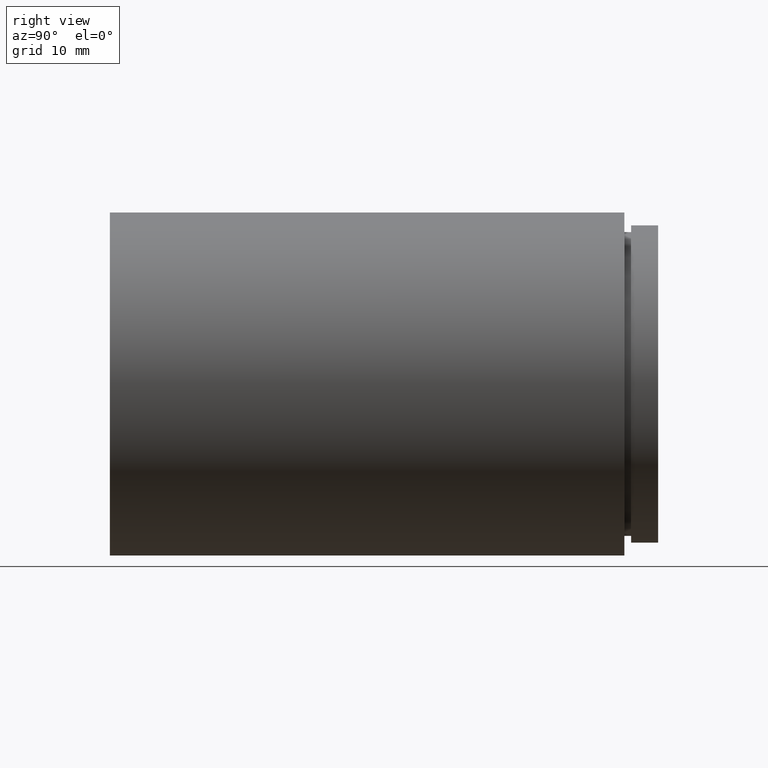
[diagram: clean part render]
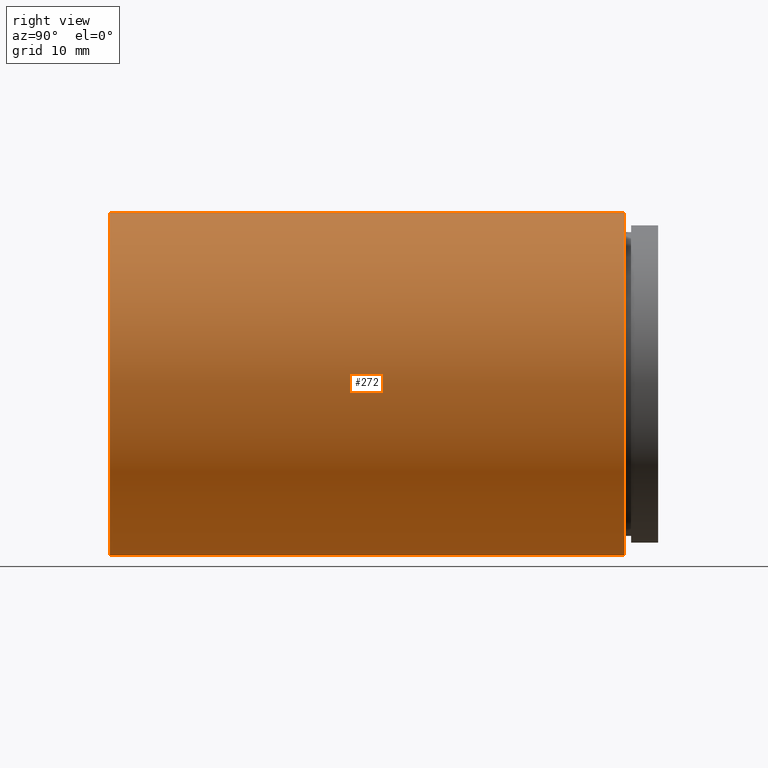
[diagram: same view with one face highlighted and labeled with its STEP entity id]
A machine part, right view. The second image highlights one B-rep face of the part: STEP entity #272.
In plain terms, the highlighted cylindrical surface (partial cylindrical patch) has radius 25.4 mm, axis along (-0, 1, -0).
Its self-contained STEP definition (entity closure, byte-faithful):
#28 = DIRECTION ( 'NONE',  ( 0.0000000000000000000, 0.0000000000000000000, 1.000000000000000000 ) ) ;
#32 = EDGE_CURVE ( 'NONE', #298, #317, #800, .T. ) ;
#46 = FACE_OUTER_BOUND ( 'NONE', #359, .T. ) ;
#84 = CARTESIAN_POINT ( 'NONE',  ( 3.110602869834278000E-015, 76.20000000000000300, -25.40000000000000900 ) ) ;
#112 = ORIENTED_EDGE ( 'NONE', *, *, #458, .F. ) ;
#122 = VERTEX_POINT ( 'NONE', #84 ) ;
#134 = DIRECTION ( 'NONE',  ( -0.0000000000000000000, 1.000000000000000000, -0.0000000000000000000 ) ) ;
#136 = LINE ( 'NONE', #341, #776 ) ;
#222 = CYLINDRICAL_SURFACE ( 'NONE', #334, 25.40000000000001300 ) ;
#238 = DIRECTION ( 'NONE',  ( 0.0000000000000000000, 0.0000000000000000000, 1.000000000000000000 ) ) ;
#246 = DIRECTION ( 'NONE',  ( 0.0000000000000000000, 0.0000000000000000000, 1.000000000000000000 ) ) ;
#272 = ADVANCED_FACE ( 'NONE', ( #46 ), #222, .T. ) ;
#298 = VERTEX_POINT ( 'NONE', #473 ) ;
#313 = CARTESIAN_POINT ( 'NONE',  ( 0.0000000000000000000, 76.20000000000000300, 25.40000000000000900 ) ) ;
#317 = VERTEX_POINT ( 'NONE', #464 ) ;
#334 = AXIS2_PLACEMENT_3D ( 'NONE', #400, #596, #28 ) ;
#341 = CARTESIAN_POINT ( 'NONE',  ( 0.0000000000000000000, 161.3761669434274500, 25.40000000000001300 ) ) ;
#359 = EDGE_LOOP ( 'NONE', ( #713, #792, #112, #528 ) ) ;
#371 = DIRECTION ( 'NONE',  ( -0.0000000000000000000, 1.000000000000000000, -0.0000000000000000000 ) ) ;
#383 = AXIS2_PLACEMENT_3D ( 'NONE', #550, #670, #238 ) ;
#392 = DIRECTION ( 'NONE',  ( -0.0000000000000000000, 1.000000000000000000, -0.0000000000000000000 ) ) ;
#400 = CARTESIAN_POINT ( 'NONE',  ( 0.0000000000000000000, 161.3761669434274500, 0.0000000000000000000 ) ) ;
#427 = CIRCLE ( 'NONE', #383, 25.40000000000000900 ) ;
#458 = EDGE_CURVE ( 'NONE', #553, #122, #427, .T. ) ;
#464 = CARTESIAN_POINT ( 'NONE',  ( 3.110602869834279200E-015, -2.775557561562891400E-014, -25.40000000000002000 ) ) ;
#473 = CARTESIAN_POINT ( 'NONE',  ( 0.0000000000000000000, -2.775557561562891400E-014, 25.40000000000002000 ) ) ;
#474 = EDGE_CURVE ( 'NONE', #317, #122, #685, .T. ) ;
#496 = CARTESIAN_POINT ( 'NONE',  ( 0.0000000000000000000, -2.775557561562891400E-014, 0.0000000000000000000 ) ) ;
#506 = VECTOR ( 'NONE', #371, 1000.000000000000000 ) ;
#528 = ORIENTED_EDGE ( 'NONE', *, *, #714, .F. ) ;
#550 = CARTESIAN_POINT ( 'NONE',  ( 0.0000000000000000000, 76.20000000000000300, 0.0000000000000000000 ) ) ;
#553 = VERTEX_POINT ( 'NONE', #313 ) ;
#596 = DIRECTION ( 'NONE',  ( -0.0000000000000000000, 1.000000000000000000, -0.0000000000000000000 ) ) ;
#670 = DIRECTION ( 'NONE',  ( -0.0000000000000000000, 1.000000000000000000, -0.0000000000000000000 ) ) ;
#685 = LINE ( 'NONE', #739, #506 ) ;
#713 = ORIENTED_EDGE ( 'NONE', *, *, #32, .T. ) ;
#714 = EDGE_CURVE ( 'NONE', #298, #553, #136, .T. ) ;
#739 = CARTESIAN_POINT ( 'NONE',  ( 3.110602869834278400E-015, 161.3761669434274500, -25.40000000000001300 ) ) ;
#776 = VECTOR ( 'NONE', #392, 1000.000000000000000 ) ;
#784 = AXIS2_PLACEMENT_3D ( 'NONE', #496, #134, #246 ) ;
#792 = ORIENTED_EDGE ( 'NONE', *, *, #474, .T. ) ;
#800 = CIRCLE ( 'NONE', #784, 25.40000000000002000 ) ;